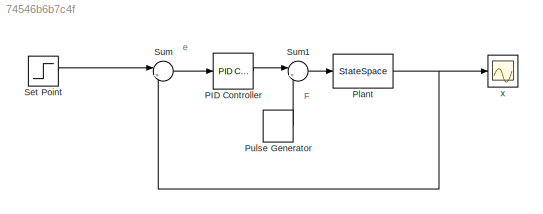
MODEL slx_74546b6b7c4f
KIND model
CONFIG AbsTol = auto
CONFIG FixedStep = auto
CONFIG MaxStep = auto
CONFIG MinStep = auto
CONFIG RelTol = 1e-3
CONFIG SampleTimeConstraint = Unconstrained
CONFIG Solver = VariableStepAuto
CONFIG SolverMode = Auto
CONFIG SolverName = VariableStepAuto
CONFIG StartTime = 0.0
CONFIG StopTime = 50.0
BLOCK [Reference] PID Controller  REF=simulink/Continuous/PID Controller
  Ports = [1, 1]
  SourceBlock = simulink/Continuous/PID Controller
  SourceType = PID 1dof
BLOCK [StateSpace] Plant
  A = [0 1; -0.6, -0.2]
  B = [0; 0.2]
  C = [1, 0]
  D = 0
  Ports = [1, 1]
  X0 = 0
BLOCK [DiscretePulseGenerator] Pulse Generator
  Period = 20
  PhaseDelay = 5
  Ports = [0, 1]
  PulseType = Time based
  PulseWidth = 10
BLOCK [Step] Set Point
  SampleTime = 0
  Time = 10
BLOCK [Sum] Sum
  IconShape = round
  InputSameDT = off
  Inputs = |+-
  OutDataTypeStr = Inherit: Inherit via internal rule
  Ports = [2, 1]
  SaturateOnIntegerOverflow = off
BLOCK [Sum] Sum1
  IconShape = round
  InputSameDT = off
  Inputs = |++
  OutDataTypeStr = Inherit: Inherit via internal rule
  Ports = [2, 1]
  SaturateOnIntegerOverflow = off
BLOCK [Scope] x
  Ports = [1]
  ScopeSpecificationString = Simulink.scopes.TimeScopeBlockCfg('CurrentConfiguration', extmgr.ConfigurationSet(extmgr.Configuration('Core','General UI',true),extmgr.Configuration('Core','Source UI',true),extmgr.Configuration('Sources','WiredSimulink',true,'DataLoggingVariableName','ScopeData1'),extmgr.Configuration('Visuals','Time Domain',true,'SerializedDisplays',{struct('MinYLimReal','-0.48106','MaxYLimReal','2.58194','YLab...<+1435ch>
ANNOTATION (root): F
ANNOTATION (root): e
LINE PID Controller:1 -> Sum1:1
NET Plant:1 -> Sum:2, x:1
LINE Pulse Generator:1 -> Sum1:2
LINE Set Point:1 -> Sum:1
LINE Sum1:1 -> Plant:1
LINE Sum:1 -> PID Controller:1
note: NET lines group one-source signal fan-out (src -> all destinations, sorted); 1:1 wires keep LINE
